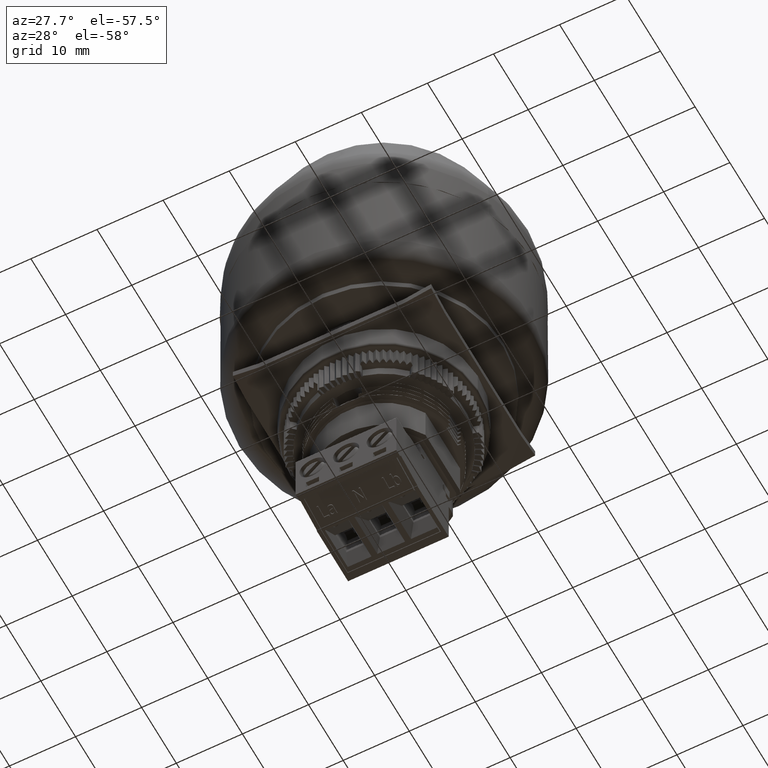
[diagram: clean part render]
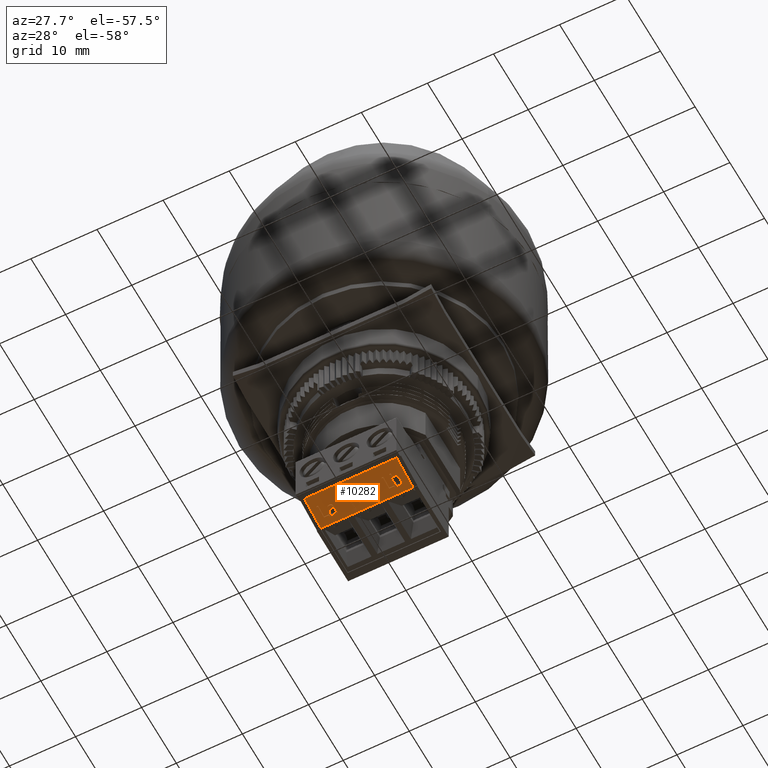
[diagram: same view with one face highlighted and labeled with its STEP entity id]
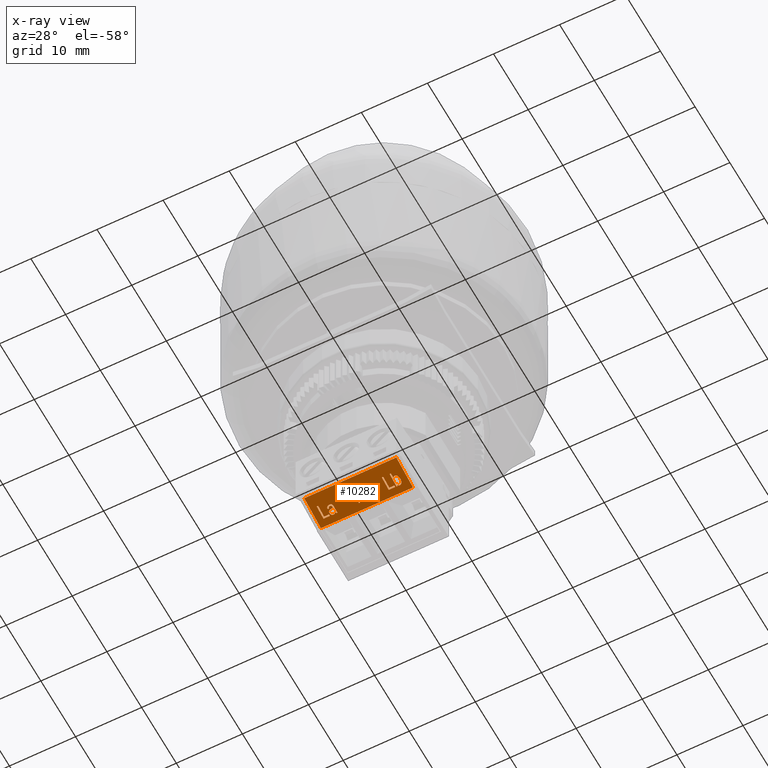
[diagram: x-ray of the same camera — body ghosted, the highlighted face saturated]
A machine part, auxiliary view. The second image highlights one B-rep face of the part: STEP entity #10282.
The next image is the same camera in x-ray: the body ghosted, the highlighted face saturated — about 0% of this face is hidden behind the body in this view.
In plain terms, the highlighted planar face has unit normal (0, -0.1644, -0.9864).
Its self-contained STEP definition (entity closure, byte-faithful):
#607=B_SPLINE_CURVE_WITH_KNOTS('',3,(#50327,#50328,#50329,#50330,#50331,
#50332,#50333,#50334,#50335,#50336,#50337,#50338,#50339,#50340,#50341,#50342,
#50343,#50344),.UNSPECIFIED.,.F.,.F.,(4,2,2,2,2,2,2,2,4),(0.,0.141139491069957,
0.219350546631016,0.296903946739564,0.374250461463833,0.451191186124659,
0.634491147816621,0.817791109508583,1.),.UNSPECIFIED.);
#608=B_SPLINE_CURVE_WITH_KNOTS('',3,(#50384,#50385,#50386,#50387),.UNSPECIFIED.,
 .F.,.F.,(4,4),(0.,1.),.UNSPECIFIED.);
#609=B_SPLINE_CURVE_WITH_KNOTS('',3,(#50390,#50391,#50392,#50393,#50394,
#50395,#50396,#50397,#50398,#50399,#50400,#50401,#50402,#50403,#50404,#50405),
 .UNSPECIFIED.,.F.,.F.,(4,2,2,2,2,2,2,4),(0.,0.118743004700795,0.236733175634041,
0.353851373511062,0.554989148125957,0.756126922740852,0.878361776124181,
1.),.UNSPECIFIED.);
#610=B_SPLINE_CURVE_WITH_KNOTS('',3,(#50407,#50408,#50409,#50410,#50411,
#50412),.UNSPECIFIED.,.F.,.F.,(4,2,4),(0.,0.670613947686778,1.),.UNSPECIFIED.);
#611=B_SPLINE_CURVE_WITH_KNOTS('',3,(#50414,#50415,#50416,#50417,#50418,
#50419,#50420,#50421,#50422,#50423,#50424,#50425),.UNSPECIFIED.,.F.,.F.,
(4,2,2,2,2,4),(0.,0.254566174839139,0.509132349678278,0.781720908576822,
0.982578664064817,1.),.UNSPECIFIED.);
#612=B_SPLINE_CURVE_WITH_KNOTS('',3,(#50429,#50430,#50431,#50432,#50433,
#50434,#50435,#50436,#50437,#50438,#50439,#50440,#50441,#50442),.UNSPECIFIED.,
 .F.,.F.,(4,2,2,2,2,2,4),(0.,0.166571548220634,0.331768206242466,0.497845464514662,
0.664608992449138,0.832571713480451,1.),.UNSPECIFIED.);
#613=B_SPLINE_CURVE_WITH_KNOTS('',3,(#50444,#50445,#50446,#50447,#50448,
#50449,#50450,#50451,#50452,#50453),.UNSPECIFIED.,.F.,.F.,(4,2,2,2,4),(0.,
0.338361049612275,0.677009077272557,0.83863080561154,1.),.UNSPECIFIED.);
#3810=LINE('',#50347,#7023);
#3811=LINE('',#50349,#7024);
#3812=LINE('',#50351,#7025);
#3813=LINE('',#50353,#7026);
#3814=LINE('',#50355,#7027);
#3815=LINE('',#50356,#7028);
#3816=LINE('',#50359,#7029);
#3817=LINE('',#50361,#7030);
#3818=LINE('',#50363,#7031);
#3819=LINE('',#50365,#7032);
#3820=LINE('',#50367,#7033);
#3821=LINE('',#50369,#7034);
#3822=LINE('',#50371,#7035);
#3823=LINE('',#50373,#7036);
#3824=LINE('',#50375,#7037);
#3825=LINE('',#50376,#7038);
#3826=LINE('',#50379,#7039);
#3827=LINE('',#50381,#7040);
#3828=LINE('',#50383,#7041);
#3829=LINE('',#50427,#7042);
#3830=LINE('',#50455,#7043);
#3831=LINE('',#50456,#7044);
#3832=LINE('',#50459,#7045);
#3833=LINE('',#50461,#7046);
#3834=LINE('',#50463,#7047);
#3835=LINE('',#50465,#7048);
#3836=LINE('',#50467,#7049);
#3837=LINE('',#50468,#7050);
#3838=LINE('',#50471,#7051);
#3839=LINE('',#50473,#7052);
#3840=LINE('',#50475,#7053);
#3841=LINE('',#50477,#7054);
#3842=LINE('',#50479,#7055);
#7023=VECTOR('',#38942,1.);
#7024=VECTOR('',#38943,1.);
#7025=VECTOR('',#38944,1.);
#7026=VECTOR('',#38945,1.);
#7027=VECTOR('',#38946,1.);
#7028=VECTOR('',#38947,1.);
#7029=VECTOR('',#38948,1.);
#7030=VECTOR('',#38949,1.);
#7031=VECTOR('',#38950,1.);
#7032=VECTOR('',#38951,1.);
#7033=VECTOR('',#38952,1.);
#7034=VECTOR('',#38953,1.);
#7035=VECTOR('',#38954,1.);
#7036=VECTOR('',#38955,1.);
#7037=VECTOR('',#38956,1.);
#7038=VECTOR('',#38957,1.);
#7039=VECTOR('',#38958,1.);
#7040=VECTOR('',#38959,1.);
#7041=VECTOR('',#38960,1.);
#7042=VECTOR('',#38961,1.);
#7043=VECTOR('',#38962,1.);
#7044=VECTOR('',#38963,1.);
#7045=VECTOR('',#38964,1.);
#7046=VECTOR('',#38965,1.);
#7047=VECTOR('',#38966,1.);
#7048=VECTOR('',#38967,1.);
#7049=VECTOR('',#38968,1.);
#7050=VECTOR('',#38969,1.);
#7051=VECTOR('',#38970,1.);
#7052=VECTOR('',#38971,1.);
#7053=VECTOR('',#38972,1.);
#7054=VECTOR('',#38973,1.);
#7055=VECTOR('',#38974,1.);
#10282=ADVANCED_FACE('',(#12663,#12664,#12665,#12666,#12667,#12668),#11867,
 .T.);
#11867=PLANE('',#34485);
#12663=FACE_BOUND('',#13361,.T.);
#12664=FACE_BOUND('',#13362,.T.);
#12665=FACE_BOUND('',#13363,.T.);
#12666=FACE_BOUND('',#13364,.T.);
#12667=FACE_BOUND('',#13365,.T.);
#12668=FACE_BOUND('',#13366,.T.);
#13361=EDGE_LOOP('',(#17710,#17711,#17712,#17713,#17714,#17715));
#13362=EDGE_LOOP('',(#17716,#17717,#17718,#17719,#17720,#17721,#17722,#17723,
#17724,#17725));
#13363=EDGE_LOOP('',(#17726,#17727,#17728,#17729));
#13364=EDGE_LOOP('',(#17730,#17731,#17732,#17733,#17734,#17735,#17736,#17737));
#13365=EDGE_LOOP('',(#17738,#17739,#17740,#17741,#17742,#17743));
#13366=EDGE_LOOP('',(#17744,#17745,#17746,#17747,#17748,#17749));
#17710=ORIENTED_EDGE('',*,*,#29371,.T.);
#17711=ORIENTED_EDGE('',*,*,#29372,.T.);
#17712=ORIENTED_EDGE('',*,*,#29373,.T.);
#17713=ORIENTED_EDGE('',*,*,#29374,.T.);
#17714=ORIENTED_EDGE('',*,*,#29375,.T.);
#17715=ORIENTED_EDGE('',*,*,#29376,.T.);
#17716=ORIENTED_EDGE('',*,*,#29377,.T.);
#17717=ORIENTED_EDGE('',*,*,#29378,.T.);
#17718=ORIENTED_EDGE('',*,*,#29379,.T.);
#17719=ORIENTED_EDGE('',*,*,#29380,.T.);
#17720=ORIENTED_EDGE('',*,*,#29381,.T.);
#17721=ORIENTED_EDGE('',*,*,#29382,.T.);
#17722=ORIENTED_EDGE('',*,*,#29383,.T.);
#17723=ORIENTED_EDGE('',*,*,#29384,.T.);
#17724=ORIENTED_EDGE('',*,*,#29385,.T.);
#17725=ORIENTED_EDGE('',*,*,#29386,.T.);
#17726=ORIENTED_EDGE('',*,*,#29387,.F.);
#17727=ORIENTED_EDGE('',*,*,#29388,.T.);
#17728=ORIENTED_EDGE('',*,*,#29389,.F.);
#17729=ORIENTED_EDGE('',*,*,#29390,.F.);
#17730=ORIENTED_EDGE('',*,*,#29391,.F.);
#17731=ORIENTED_EDGE('',*,*,#29392,.F.);
#17732=ORIENTED_EDGE('',*,*,#29393,.F.);
#17733=ORIENTED_EDGE('',*,*,#29394,.F.);
#17734=ORIENTED_EDGE('',*,*,#29395,.F.);
#17735=ORIENTED_EDGE('',*,*,#29396,.F.);
#17736=ORIENTED_EDGE('',*,*,#29397,.F.);
#17737=ORIENTED_EDGE('',*,*,#29398,.F.);
#17738=ORIENTED_EDGE('',*,*,#29399,.T.);
#17739=ORIENTED_EDGE('',*,*,#29400,.T.);
#17740=ORIENTED_EDGE('',*,*,#29401,.T.);
#17741=ORIENTED_EDGE('',*,*,#29402,.T.);
#17742=ORIENTED_EDGE('',*,*,#29403,.T.);
#17743=ORIENTED_EDGE('',*,*,#29404,.T.);
#17744=ORIENTED_EDGE('',*,*,#29405,.T.);
#17745=ORIENTED_EDGE('',*,*,#29406,.T.);
#17746=ORIENTED_EDGE('',*,*,#29407,.T.);
#17747=ORIENTED_EDGE('',*,*,#29408,.T.);
#17748=ORIENTED_EDGE('',*,*,#29409,.T.);
#17749=ORIENTED_EDGE('',*,*,#29410,.T.);
#25584=VERTEX_POINT('',#50345);
#25585=VERTEX_POINT('',#50346);
#25586=VERTEX_POINT('',#50348);
#25587=VERTEX_POINT('',#50350);
#25588=VERTEX_POINT('',#50352);
#25589=VERTEX_POINT('',#50354);
#25590=VERTEX_POINT('',#50357);
#25591=VERTEX_POINT('',#50358);
#25592=VERTEX_POINT('',#50360);
#25593=VERTEX_POINT('',#50362);
#25594=VERTEX_POINT('',#50364);
#25595=VERTEX_POINT('',#50366);
#25596=VERTEX_POINT('',#50368);
#25597=VERTEX_POINT('',#50370);
#25598=VERTEX_POINT('',#50372);
#25599=VERTEX_POINT('',#50374);
#25600=VERTEX_POINT('',#50377);
#25601=VERTEX_POINT('',#50378);
#25602=VERTEX_POINT('',#50380);
#25603=VERTEX_POINT('',#50382);
#25604=VERTEX_POINT('',#50388);
#25605=VERTEX_POINT('',#50389);
#25606=VERTEX_POINT('',#50406);
#25607=VERTEX_POINT('',#50413);
#25608=VERTEX_POINT('',#50426);
#25609=VERTEX_POINT('',#50428);
#25610=VERTEX_POINT('',#50443);
#25611=VERTEX_POINT('',#50454);
#25612=VERTEX_POINT('',#50457);
#25613=VERTEX_POINT('',#50458);
#25614=VERTEX_POINT('',#50460);
#25615=VERTEX_POINT('',#50462);
#25616=VERTEX_POINT('',#50464);
#25617=VERTEX_POINT('',#50466);
#25618=VERTEX_POINT('',#50469);
#25619=VERTEX_POINT('',#50470);
#25620=VERTEX_POINT('',#50472);
#25621=VERTEX_POINT('',#50474);
#25622=VERTEX_POINT('',#50476);
#25623=VERTEX_POINT('',#50478);
#29371=EDGE_CURVE('',#25584,#25585,#607,.T.);
#29372=EDGE_CURVE('',#25585,#25586,#3810,.T.);
#29373=EDGE_CURVE('',#25586,#25587,#3811,.T.);
#29374=EDGE_CURVE('',#25587,#25588,#3812,.T.);
#29375=EDGE_CURVE('',#25588,#25589,#3813,.T.);
#29376=EDGE_CURVE('',#25589,#25584,#3814,.T.);
#29377=EDGE_CURVE('',#25590,#25591,#3815,.T.);
#29378=EDGE_CURVE('',#25591,#25592,#3816,.T.);
#29379=EDGE_CURVE('',#25592,#25593,#3817,.T.);
#29380=EDGE_CURVE('',#25593,#25594,#3818,.T.);
#29381=EDGE_CURVE('',#25594,#25595,#3819,.T.);
#29382=EDGE_CURVE('',#25595,#25596,#3820,.T.);
#29383=EDGE_CURVE('',#25596,#25597,#3821,.T.);
#29384=EDGE_CURVE('',#25597,#25598,#3822,.T.);
#29385=EDGE_CURVE('',#25598,#25599,#3823,.T.);
#29386=EDGE_CURVE('',#25599,#25590,#3824,.T.);
#29387=EDGE_CURVE('',#25600,#25601,#3825,.T.);
#29388=EDGE_CURVE('',#25600,#25602,#3826,.T.);
#29389=EDGE_CURVE('',#25603,#25602,#3827,.T.);
#29390=EDGE_CURVE('',#25601,#25603,#3828,.T.);
#29391=EDGE_CURVE('',#25604,#25605,#608,.T.);
#29392=EDGE_CURVE('',#25606,#25604,#609,.T.);
#29393=EDGE_CURVE('',#25607,#25606,#610,.T.);
#29394=EDGE_CURVE('',#25608,#25607,#611,.T.);
#29395=EDGE_CURVE('',#25609,#25608,#3829,.T.);
#29396=EDGE_CURVE('',#25610,#25609,#612,.T.);
#29397=EDGE_CURVE('',#25611,#25610,#613,.T.);
#29398=EDGE_CURVE('',#25605,#25611,#3830,.T.);
#29399=EDGE_CURVE('',#25612,#25613,#3831,.T.);
#29400=EDGE_CURVE('',#25613,#25614,#3832,.T.);
#29401=EDGE_CURVE('',#25614,#25615,#3833,.T.);
#29402=EDGE_CURVE('',#25615,#25616,#3834,.T.);
#29403=EDGE_CURVE('',#25616,#25617,#3835,.T.);
#29404=EDGE_CURVE('',#25617,#25612,#3836,.T.);
#29405=EDGE_CURVE('',#25618,#25619,#3837,.T.);
#29406=EDGE_CURVE('',#25619,#25620,#3838,.T.);
#29407=EDGE_CURVE('',#25620,#25621,#3839,.T.);
#29408=EDGE_CURVE('',#25621,#25622,#3840,.T.);
#29409=EDGE_CURVE('',#25622,#25623,#3841,.T.);
#29410=EDGE_CURVE('',#25623,#25618,#3842,.T.);
#34485=AXIS2_PLACEMENT_3D('',#50480,#38975,#38976);
#38942=DIRECTION('',(0.,0.98639392383231,-0.164398987304358));
#38943=DIRECTION('',(-1.,0.,0.));
#38944=DIRECTION('',(0.,-0.986393923832131,0.164398987305436));
#38945=DIRECTION('',(1.,0.,0.));
#38946=DIRECTION('',(0.,0.986393923832075,-0.164398987305767));
#38947=DIRECTION('',(0.,0.986393923832143,-0.164398987305364));
#38948=DIRECTION('',(-1.,0.,0.));
#38949=DIRECTION('',(0.,-0.986393923832131,0.164398987305436));
#38950=DIRECTION('',(1.,0.,0.));
#38951=DIRECTION('',(0.455803637987207,0.877969856798219,-0.14632830946656));
#38952=DIRECTION('',(0.,-0.986393923832142,0.164398987305368));
#38953=DIRECTION('',(1.,0.,0.));
#38954=DIRECTION('',(0.,0.986393923832128,-0.164398987305449));
#38955=DIRECTION('',(-1.,0.,0.));
#38956=DIRECTION('',(-0.455450886855235,-0.878147953240201,0.146357992206872));
#38957=DIRECTION('',(1.,0.,0.));
#38958=DIRECTION('',(0.,0.986393923832144,-0.164398987305357));
#38959=DIRECTION('',(-1.,0.,0.));
#38960=DIRECTION('',(0.,0.986393923832144,-0.164398987305357));
#38961=DIRECTION('',(0.984480816950084,0.173104464481371,-0.0288507440790291));
#38962=DIRECTION('',(1.,0.,0.));
#38963=DIRECTION('',(0.,0.986393923832068,-0.16439898730581));
#38964=DIRECTION('',(-1.,0.,0.));
#38965=DIRECTION('',(0.,-0.986393923832131,0.164398987305436));
#38966=DIRECTION('',(1.,0.,0.));
#38967=DIRECTION('',(0.,0.986393923832108,-0.164398987305575));
#38968=DIRECTION('',(1.,0.,0.));
#38969=DIRECTION('',(0.,0.986393923832068,-0.16439898730581));
#38970=DIRECTION('',(-1.,0.,0.));
#38971=DIRECTION('',(0.,-0.986393923832131,0.164398987305436));
#38972=DIRECTION('',(1.,0.,0.));
#38973=DIRECTION('',(0.,0.986393923832108,-0.164398987305575));
#38974=DIRECTION('',(1.,0.,0.));
#38975=DIRECTION('',(0.,-0.164398987305406,-0.986393923832136));
#38976=DIRECTION('',(0.,-0.986393923832136,0.164398987305406));
#50327=CARTESIAN_POINT('',(6.19216271786625,-5.43548134138337,-54.7113633146342));
#50328=CARTESIAN_POINT('',(6.27167182420478,-5.56417433221335,-54.6899144828292));
#50329=CARTESIAN_POINT('',(6.37311447711947,-5.62826848843063,-54.6792321234597));
#50330=CARTESIAN_POINT('',(6.56424966871161,-5.62826848843063,-54.6792321234597));
#50331=CARTESIAN_POINT('',(6.62887529701633,-5.61060474459122,-54.6821760807662));
#50332=CARTESIAN_POINT('',(6.75056270683905,-5.53924171536247,-54.694069918971));
#50333=CARTESIAN_POINT('',(6.80081863535434,-5.48948192969241,-54.7023632165827));
#50334=CARTESIAN_POINT('',(6.8798305423756,-5.36146459808036,-54.723699438518));
#50335=CARTESIAN_POINT('',(6.91048636823507,-5.28407782275986,-54.7365972344048));
#50336=CARTESIAN_POINT('',(6.95501967551735,-5.10287019365168,-54.7667985059228));
#50337=CARTESIAN_POINT('',(6.96610357562459,-5.00600002688802,-54.7829435337168));
#50338=CARTESIAN_POINT('',(6.96610357562459,-4.65777193405396,-54.8409815491891));
#50339=CARTESIAN_POINT('',(6.9191031186757,-4.46851753577458,-54.8725239489024));
#50340=CARTESIAN_POINT('',(6.73110129088015,-4.20103798620639,-54.9171038738304));
#50341=CARTESIAN_POINT('',(6.61830019420283,-4.13442043801205,-54.9282067985295));
#50342=CARTESIAN_POINT('',(6.35588097623821,-4.13442043801205,-54.9282067985295));
#50343=CARTESIAN_POINT('',(6.2532633118998,-4.20457073497427,-54.9165150823691));
#50344=CARTESIAN_POINT('',(6.17884592173073,-4.34588068568954,-54.8929634239166));
#50345=CARTESIAN_POINT('',(6.19216271786625,-5.43548134138337,-54.7113633146342));
#50346=CARTESIAN_POINT('',(6.17884592173073,-4.34588068568954,-54.8929634239166));
#50347=CARTESIAN_POINT('',(6.17884592173073,-4.25630027050397,-54.9078934931142));
#50348=CARTESIAN_POINT('',(6.17884592173073,-4.16671985531839,-54.9228235623118));
#50349=CARTESIAN_POINT('',(6.09150340590072,-4.16671985531839,-54.9228235623118));
#50350=CARTESIAN_POINT('',(6.0041608900707,-4.16671985531839,-54.9228235623118));
#50351=CARTESIAN_POINT('',(6.0041608900707,-5.15311377915053,-54.7584245750063));
#50352=CARTESIAN_POINT('',(6.0041608900707,-6.13950770298266,-54.5940255877009));
#50353=CARTESIAN_POINT('',(6.09816180396848,-6.13950770298266,-54.5940255877009));
#50354=CARTESIAN_POINT('',(6.19216271786625,-6.13950770298266,-54.5940255877009));
#50355=CARTESIAN_POINT('',(6.19216271786625,-5.78749452218301,-54.6526944511676));
#50356=CARTESIAN_POINT('',(0.516465870813571,-4.94190587067074,-54.7936258930863));
#50357=CARTESIAN_POINT('',(0.516465870813571,-5.71709188602309,-54.6644282238609));
#50358=CARTESIAN_POINT('',(0.516465870813571,-4.16671985531839,-54.9228235623118));
#50359=CARTESIAN_POINT('',(0.419331593119205,-4.16671985531839,-54.9228235623118));
#50360=CARTESIAN_POINT('',(0.322197315424838,-4.16671985531839,-54.9228235623118));
#50361=CARTESIAN_POINT('',(0.322197315424838,-5.15311377915053,-54.7584245750063));
#50362=CARTESIAN_POINT('',(0.322197315424838,-6.13950770298266,-54.5940255877009));
#50363=CARTESIAN_POINT('',(0.426185826424251,-6.13950770298266,-54.5940255877009));
#50364=CARTESIAN_POINT('',(0.530174337423663,-6.13950770298266,-54.5940255877009));
#50365=CARTESIAN_POINT('',(0.932224079573933,-5.36507870522344,-54.7230970873275));
#50366=CARTESIAN_POINT('',(1.3342738217242,-4.59064970746421,-54.8521685869541));
#50367=CARTESIAN_POINT('',(1.3342738217242,-5.36507870522344,-54.7230970873275));
#50368=CARTESIAN_POINT('',(1.3342738217242,-6.13950770298266,-54.5940255877009));
#50369=CARTESIAN_POINT('',(1.43140809941857,-6.13950770298266,-54.5940255877009));
#50370=CARTESIAN_POINT('',(1.52854237711294,-6.13950770298266,-54.5940255877009));
#50371=CARTESIAN_POINT('',(1.52854237711294,-5.15311377915053,-54.7584245750063));
#50372=CARTESIAN_POINT('',(1.52854237711294,-4.16671985531839,-54.9228235623118));
#50373=CARTESIAN_POINT('',(1.42455386611353,-4.16671985531839,-54.9228235623118));
#50374=CARTESIAN_POINT('',(1.32056535511411,-4.16671985531839,-54.9228235623118));
#50375=CARTESIAN_POINT('',(0.918515612963842,-4.94190587067074,-54.7936258930863));
#50376=CARTESIAN_POINT('',(-6.00389642437541,-7.8917198553184,-54.3019902289782));
#50377=CARTESIAN_POINT('',(-6.00389642437541,-7.8917198553184,-54.3019902289782));
#50378=CARTESIAN_POINT('',(7.93610357562459,-7.8917198553184,-54.3019902289782));
#50379=CARTESIAN_POINT('',(-6.00389642437541,-7.8917198553184,-54.3019902289782));
#50380=CARTESIAN_POINT('',(-6.00389642437541,-3.09171985531841,-55.1019902289782));
#50381=CARTESIAN_POINT('',(7.93610357562459,-3.09171985531841,-55.1019902289782));
#50382=CARTESIAN_POINT('',(7.93610357562459,-3.09171985531841,-55.1019902289782));
#50383=CARTESIAN_POINT('',(7.93610357562459,-7.8917198553184,-54.3019902289782));
#50384=CARTESIAN_POINT('',(-3.1362529750641,-4.34285261531707,-54.893468102312));
#50385=CARTESIAN_POINT('',(-3.13076958842006,-4.27573038872732,-54.9046551400769));
#50386=CARTESIAN_POINT('',(-3.11823613323369,-4.21668301646415,-54.9144963687875));
#50387=CARTESIAN_POINT('',(-3.09865260950499,-4.16671985531839,-54.9228235623118));
#50388=CARTESIAN_POINT('',(-3.1362529750641,-4.34285261531707,-54.893468102312));
#50389=CARTESIAN_POINT('',(-3.09865260950499,-4.16671985531839,-54.9228235623118));
#50390=CARTESIAN_POINT('',(-3.65443301292558,-4.95401815216062,-54.7916071795047));
#50391=CARTESIAN_POINT('',(-3.70456683367106,-4.9358497299258,-54.7946352498772));
#50392=CARTESIAN_POINT('',(-3.74935403564645,-4.90932396116044,-54.7990562113381));
#50393=CARTESIAN_POINT('',(-3.82950971506018,-4.83945615640216,-54.8107008454644));
#50394=CARTESIAN_POINT('',(-3.86183465137417,-4.79294941511406,-54.8184519690125));
#50395=CARTESIAN_POINT('',(-3.91136884424616,-4.67745439147502,-54.837701139619));
#50396=CARTESIAN_POINT('',(-3.92390229943253,-4.61336023525773,-54.8483834989885));
#50397=CARTESIAN_POINT('',(-3.92390229943253,-4.42410583697835,-54.8799258987018));
#50398=CARTESIAN_POINT('',(-3.89100197956831,-4.32619822826848,-54.8962438334867));
#50399=CARTESIAN_POINT('',(-3.76018404106057,-4.17277599606333,-54.9218142055209));
#50400=CARTESIAN_POINT('',(-3.66657479763737,-4.13442043801205,-54.9282067985295));
#50401=CARTESIAN_POINT('',(-3.47073956035034,-4.13442043801205,-54.9282067985295));
#50402=CARTESIAN_POINT('',(-3.40172895075569,-4.14991199206142,-54.9256248728546));
#50403=CARTESIAN_POINT('',(-3.27294597069044,-4.21264558930086,-54.9151692733147));
#50404=CARTESIAN_POINT('',(-3.20597031953828,-4.26664617760991,-54.9061691752632));
#50405=CARTESIAN_POINT('',(-3.1362529750641,-4.34285261531707,-54.893468102312));
#50406=CARTESIAN_POINT('',(-3.65443301292558,-4.95401815216062,-54.7916071795047));
#50407=CARTESIAN_POINT('',(-3.15191979404706,-5.07362693187319,-54.7716723828859));
#50408=CARTESIAN_POINT('',(-3.22359549089411,-5.04132751456684,-54.7770556191036));
#50409=CARTESIAN_POINT('',(-3.33567954112535,-5.01398751075675,-54.7816122864053));
#50410=CARTESIAN_POINT('',(-3.56160711045152,-4.97874739353579,-54.7874856392755));
#50411=CARTESIAN_POINT('',(-3.61722431784104,-4.96663511204591,-54.7895043528571));
#50412=CARTESIAN_POINT('',(-3.65443301292558,-4.95401815216062,-54.7916071795047));
#50413=CARTESIAN_POINT('',(-3.15191979404706,-5.07362693187319,-54.7716723828859));
#50414=CARTESIAN_POINT('',(-3.70770019746765,-5.15588951032529,-54.7579619531439));
#50415=CARTESIAN_POINT('',(-3.6873333327898,-5.25732986780304,-54.7410552268976));
#50416=CARTESIAN_POINT('',(-3.65639136529845,-5.32798484316068,-54.7292793976713));
#50417=CARTESIAN_POINT('',(-3.57179054279045,-5.40772402963572,-54.7159895332588));
#50418=CARTESIAN_POINT('',(-3.50677324401116,-5.42740648705678,-54.7127091236886));
#50419=CARTESIAN_POINT('',(-3.3234714619105,-5.42740648705678,-54.7127091236886));
#50420=CARTESIAN_POINT('',(-3.25185099681655,-5.40044141535895,-54.7172033023049));
#50421=CARTESIAN_POINT('',(-3.16876162445374,-5.30527431536715,-54.7330644856369));
#50422=CARTESIAN_POINT('',(-3.15074478262334,-5.23562869680035,-54.7446720887314));
#50423=CARTESIAN_POINT('',(-3.15074478262334,-5.12813219857765,-54.7625881717685));
#50424=CARTESIAN_POINT('',(-3.15113645309791,-5.10693570597036,-54.7661209205364));
#50425=CARTESIAN_POINT('',(-3.15191979404706,-5.07362693187319,-54.7716723828859));
#50426=CARTESIAN_POINT('',(-3.70770019746765,-5.15588951032529,-54.7579619531439));
#50427=CARTESIAN_POINT('',(-3.79954692375527,-5.17203921897847,-54.755270335035));
#50428=CARTESIAN_POINT('',(-3.89139365004288,-5.18818892763164,-54.7525787169262));
#50429=CARTESIAN_POINT('',(-2.97135970526842,-5.3118351345075,-54.7319710157802));
#50430=CARTESIAN_POINT('',(-2.98232647855649,-5.37845268270185,-54.7208680910811));
#50431=CARTESIAN_POINT('',(-3.00167855827707,-5.43310140103512,-54.7117599713589));
#50432=CARTESIAN_POINT('',(-3.05752720967471,-5.52026731181253,-54.6972323195627));
#50433=CARTESIAN_POINT('',(-3.10092663169609,-5.55625200891828,-54.6912348700451));
#50434=CARTESIAN_POINT('',(-3.21967878614837,-5.61363281496369,-54.6816714023708));
#50435=CARTESIAN_POINT('',(-3.29644619916489,-5.62826848843063,-54.6792321234597));
#50436=CARTESIAN_POINT('',(-3.4864063793333,-5.62826848843063,-54.6792321234597));
#50437=CARTESIAN_POINT('',(-3.57074119222255,-5.61137268555738,-54.6820480906052));
#50438=CARTESIAN_POINT('',(-3.71514193648456,-5.54398719639688,-54.6932790054653));
#50439=CARTESIAN_POINT('',(-3.770244951824,-5.49573621651869,-54.701320835445));
#50440=CARTESIAN_POINT('',(-3.84713488641601,-5.37138718516608,-54.7220456740038));
#50441=CARTESIAN_POINT('',(-3.8745518196362,-5.28962928510939,-54.7356719906799));
#50442=CARTESIAN_POINT('',(-3.89139365004288,-5.18818892763164,-54.7525787169262));
#50443=CARTESIAN_POINT('',(-2.97135970526842,-5.3118351345075,-54.7319710157802));
#50444=CARTESIAN_POINT('',(-2.90242570174338,-4.16671985531839,-54.9228235623118));
#50445=CARTESIAN_POINT('',(-2.92592593021783,-4.22122512202285,-54.9137393511943));
#50446=CARTESIAN_POINT('',(-2.9415997193208,-4.27880892486322,-54.9041420507209));
#50447=CARTESIAN_POINT('',(-2.9580429091329,-4.39786256041694,-54.8842997781287));
#50448=CARTESIAN_POINT('',(-2.96195961387864,-4.54018186792303,-54.8605798935443));
#50449=CARTESIAN_POINT('',(-2.96195961387864,-4.87343783502655,-54.8050372323604));
#50450=CARTESIAN_POINT('',(-2.96195961387864,-4.98110255938105,-54.7870931116346));
#50451=CARTESIAN_POINT('',(-2.96195961387864,-5.19626378195823,-54.7512329078717));
#50452=CARTESIAN_POINT('',(-2.96509297767523,-5.27045150608374,-54.7388682871841));
#50453=CARTESIAN_POINT('',(-2.97135970526842,-5.3118351345075,-54.7319710157802));
#50454=CARTESIAN_POINT('',(-2.90242570174338,-4.16671985531839,-54.9228235623118));
#50455=CARTESIAN_POINT('',(-3.00053915562419,-4.16671985531839,-54.9228235623118));
#50456=CARTESIAN_POINT('',(-4.07704545499098,-4.28304822546079,-54.9034355006213));
#50457=CARTESIAN_POINT('',(-4.07704545499098,-4.39937659560317,-54.8840474389309));
#50458=CARTESIAN_POINT('',(-4.07704545499098,-4.16671985531839,-54.9228235623118));
#50459=CARTESIAN_POINT('',(-4.5554709396832,-4.16671985531839,-54.9228235623118));
#50460=CARTESIAN_POINT('',(-5.03389642437541,-4.16671985531839,-54.9228235623118));
#50461=CARTESIAN_POINT('',(-5.03389642437541,-5.15311377915053,-54.7584245750063));
#50462=CARTESIAN_POINT('',(-5.03389642437541,-6.13950770298266,-54.5940255877009));
#50463=CARTESIAN_POINT('',(-4.93264960669802,-6.13950770298266,-54.5940255877009));
#50464=CARTESIAN_POINT('',(-4.83140278902062,-6.13950770298266,-54.5940255877009));
#50465=CARTESIAN_POINT('',(-4.83140278902062,-5.26944214929292,-54.739036513316));
#50466=CARTESIAN_POINT('',(-4.83140278902062,-4.39937659560317,-54.8840474389309));
#50467=CARTESIAN_POINT('',(-4.4542241220058,-4.39937659560317,-54.8840474389309));
#50468=CARTESIAN_POINT('',(5.7883504585804,-4.28304822546079,-54.9034355006213));
#50469=CARTESIAN_POINT('',(5.7883504585804,-4.39937659560317,-54.8840474389309));
#50470=CARTESIAN_POINT('',(5.7883504585804,-4.16671985531839,-54.9228235623118));
#50471=CARTESIAN_POINT('',(5.30992497388819,-4.16671985531839,-54.9228235623118));
#50472=CARTESIAN_POINT('',(4.83149948919597,-4.16671985531839,-54.9228235623118));
#50473=CARTESIAN_POINT('',(4.83149948919597,-5.15311377915053,-54.7584245750063));
#50474=CARTESIAN_POINT('',(4.83149948919597,-6.13950770298266,-54.5940255877009));
#50475=CARTESIAN_POINT('',(4.93274630687337,-6.13950770298266,-54.5940255877009));
#50476=CARTESIAN_POINT('',(5.03399312455076,-6.13950770298266,-54.5940255877009));
#50477=CARTESIAN_POINT('',(5.03399312455076,-5.26944214929292,-54.739036513316));
#50478=CARTESIAN_POINT('',(5.03399312455076,-4.39937659560317,-54.8840474389309));
#50479=CARTESIAN_POINT('',(5.41117179156558,-4.39937659560317,-54.8840474389309));
#50480=CARTESIAN_POINT('',(-6.70089642437541,-8.13171985531839,-54.2619902289782));